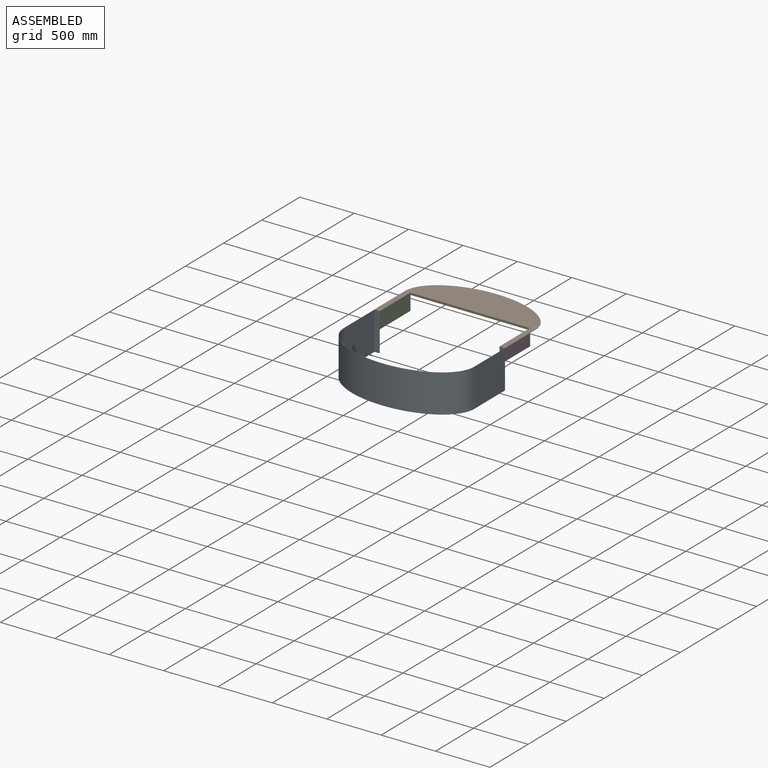
[diagram: assembled view]
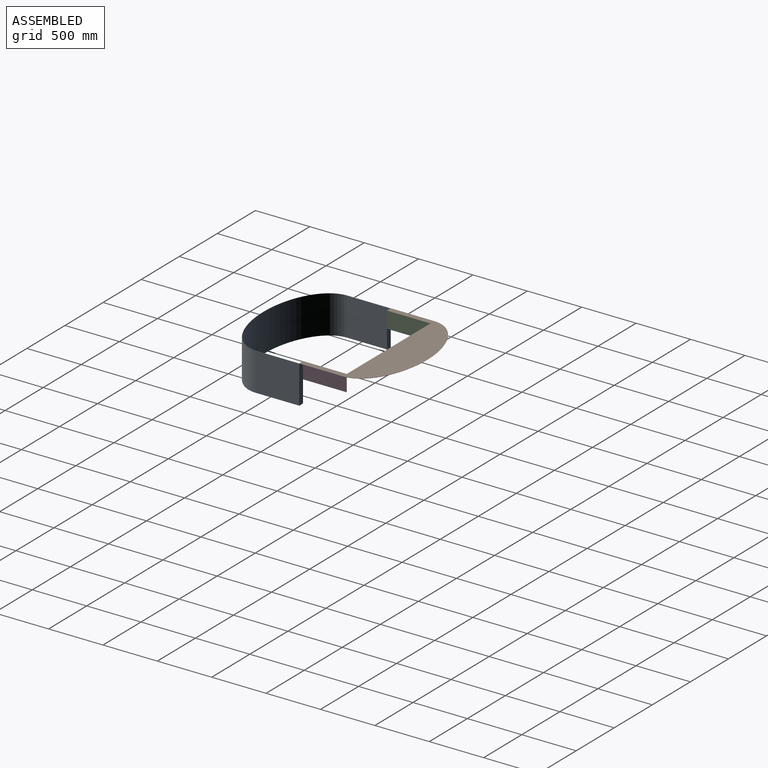
[diagram: assembled view, second angle]
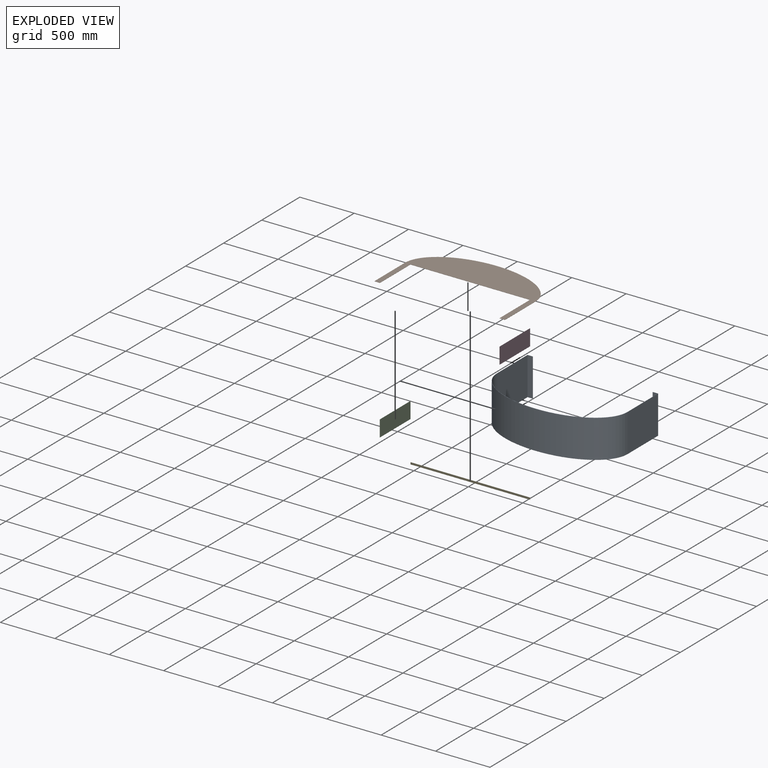
[diagram: exploded view]
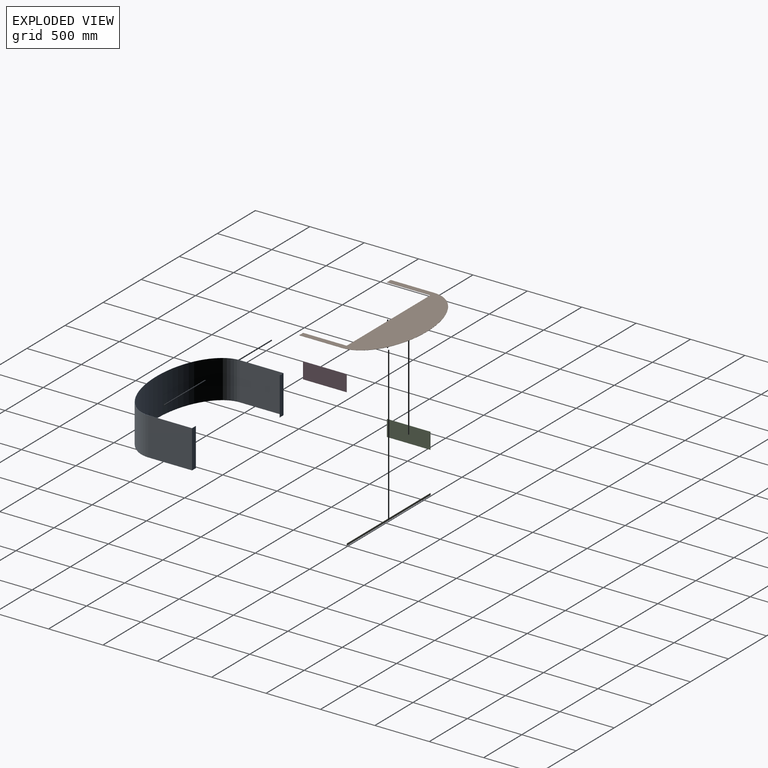
[diagram: exploded view, second angle]
ASSEMBLY  parts=5 mates=2
PART A: 14 faces, bbox 1201x751x350 mm
  f0: plane 350x1.5mm, normal (1,0,0), area 525mm2, adj f1,f11,f12,f13
  f1: plane 350x48mm, normal (0,1,0), area 16800mm2, adj f0,f2,f12,f13
  f2: plane 400x350mm, normal (1,0,0), area 140000mm2, adj f1,f3,f12,f13
  f3: extruded ~1198x350mm, area 529825.1mm2, adj f2,f4,f12,f13
  f4: plane 400x350mm, normal (-1,0,0), area 140000mm2, adj f3,f5,f12,f13
  f5: plane 350x48mm, normal (0,1,0), area 16800mm2, adj f4,f6,f12,f13
  f6: plane 350x1.5mm, normal (-1,0,0), area 525mm2, adj f5,f7,f12,f13
  f7: plane 350x49.5mm, normal (0,-1,0), area 17325mm2, adj f6,f8,f12,f13
  f8: plane 401.5x350mm, normal (1,0,0), area 140525mm2, adj f7,f9,f12,f13
  f9: extruded ~1201x350mm, area 531189.9mm2, adj f8,f10,f12,f13
  f10: plane 401.5x350mm, normal (-1,0,0), area 140525mm2, adj f9,f11,f12,f13
  f11: plane 350x49.5mm, normal (0,-1,0), area 17325mm2, adj f0,f10,f12,f13
  f12: plane 1201x751mm, normal (0,0,-1), area 3620.7mm2, adj f0,f1,f2,f3,f4,f5,f6,f7
  f13: plane 1201x751mm, normal (0,0,1), area 3620.7mm2, adj f0,f1,f2,f3,f4,f5,f6,f7
PART B: 12 faces, bbox 1201x751x1.5 mm
  f0: plane 397.5x1.5mm, normal (1,0,0), area 596.2mm2, adj f1,f8,f9,f11
  f1: extruded ~1201x350.5mm, area 2279.6mm2, adj f0,f2,f8,f9
  f2: plane 397.5x1.5mm, normal (-1,0,0), area 596.3mm2, adj f1,f8,f9,f10
  f3: plane 48x1.5mm, normal (0,-1,0), area 72mm2, adj f4,f8,f9,f10
  f4: plane 400.5x1.5mm, normal (1,0,0), area 600.7mm2, adj f3,f5,f8,f9
  f5: plane 1099x1.5mm, normal (0,-1,0), area 1648.5mm2, adj f4,f6,f8,f9
  f6: plane 400.5x1.5mm, normal (-1,0,0), area 600.8mm2, adj f5,f7,f8,f9
  f7: plane 48x1.5mm, normal (0,-1,0), area 72mm2, adj f6,f8,f9,f11
  f8: plane 1201x751mm, normal (0,0,1), area 371460.9mm2, adj f0,f1,f2,f3,f4,f5,f6,f7
  f9: plane 1201x751mm, normal (0,0,-1), area 371460.9mm2, adj f0,f1,f2,f3,f4,f5,f6,f7
  f10: cylinder r=3mm len=3mm, axis (0,0,-1), area 7.1mm2, adj f2,f3,f8,f9
  f11: cylinder r=3mm len=3mm, axis (0,0,-1), area 7.1mm2, adj f0,f7,f8,f9
PART C: 6 faces, bbox 1.5x400.5x150 mm
  f0: plane 150x1.5mm, normal (0,1,0), area 225mm2, adj f1,f3,f4,f5
  f1: plane 400.5x1.5mm, normal (0,0,1), area 600.8mm2, adj f0,f2,f4,f5
  f2: plane 150x1.5mm, normal (0,-1,0), area 225mm2, adj f1,f3,f4,f5
  f3: plane 400.5x1.5mm, normal (0,0,-1), area 600.8mm2, adj f0,f2,f4,f5
  f4: plane 400.5x150mm, normal (1,0,0), area 60075mm2, adj f0,f1,f2,f3
  f5: plane 400.5x150mm, normal (-1,0,0), area 60075mm2, adj f0,f1,f2,f3
PART D: same geometry as C
PART E: 6 faces, bbox 1099x1.5x18 mm
  f0: plane 1099x1.5mm, normal (0,0,-1), area 1648.5mm2, adj f1,f3,f4,f5
  f1: plane 18x1.5mm, normal (1,0,0), area 27mm2, adj f0,f2,f4,f5
  f2: plane 1099x1.5mm, normal (0,0,1), area 1648.5mm2, adj f1,f3,f4,f5
  f3: plane 18x1.5mm, normal (-1,0,0), area 27mm2, adj f0,f2,f4,f5
  f4: plane 1099x18mm, normal (0,-1,0), area 19782mm2, adj f0,f1,f2,f3
  f5: plane 1099x18mm, normal (0,1,0), area 19782mm2, adj f0,f1,f2,f3
PLACE A rot(axis=(1,0,0),180deg) t=(-0.11,-776.55,-174.23)mm
PLACE B t=(-0.11,25.45,175.77)mm
PLACE C t=(-551.11,-174.8,100.77)mm
PLACE D t=(549.39,-174.8,100.77)mm
PLACE E t=(-0.11,26.95,166.77)mm
MATE fastened A.f12 <-> C.f1  axis (0,0,1) through (-551.11,-375.05,175.77)mm
MATE fastened E.f2 <-> B.f9  axis (0,0,1) through (-549.61,25.45,175.77)mm
